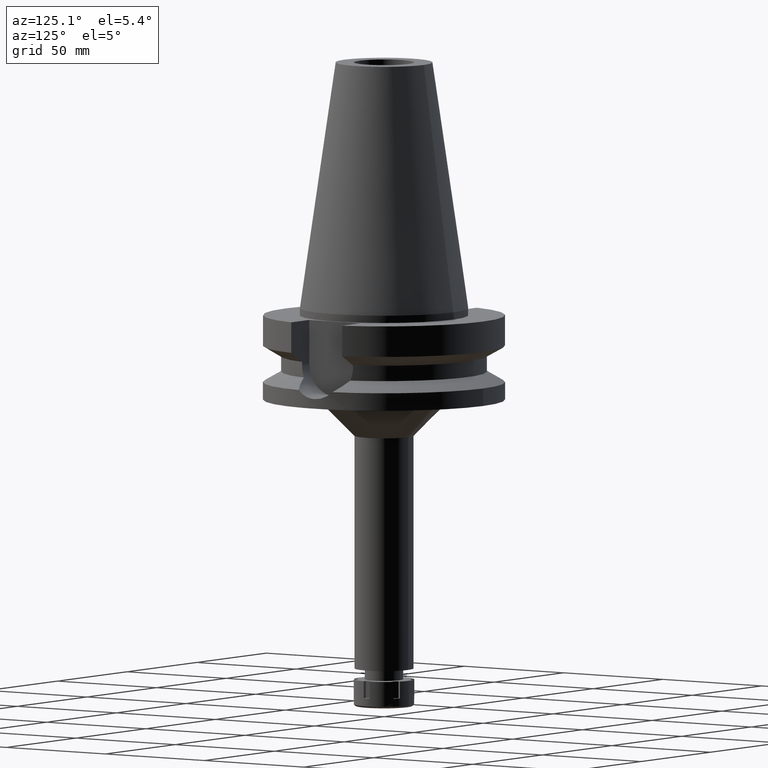
[diagram: clean part render]
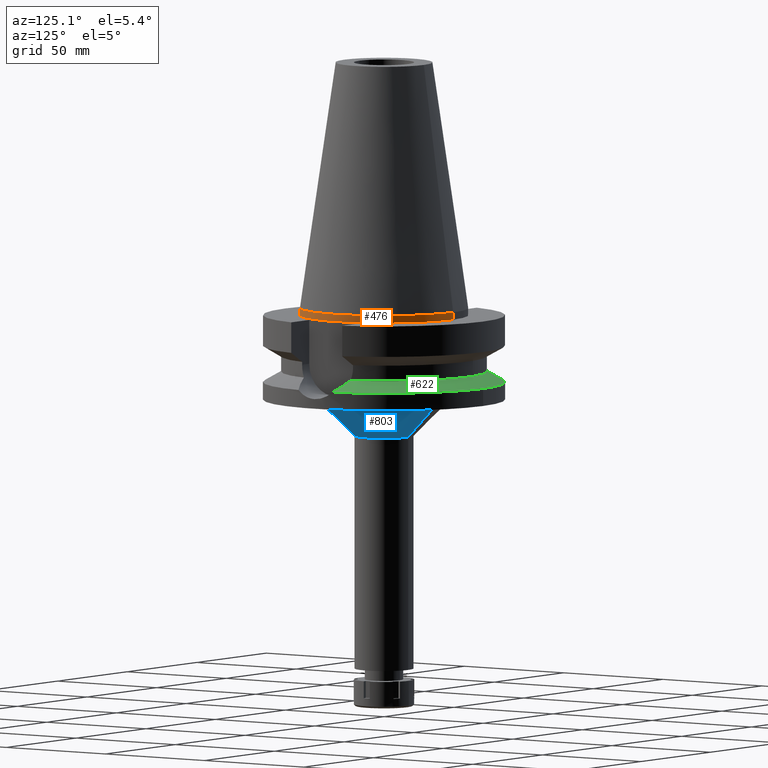
[diagram: same view with three faces highlighted in distinct colors, each labeled with its STEP entity id]
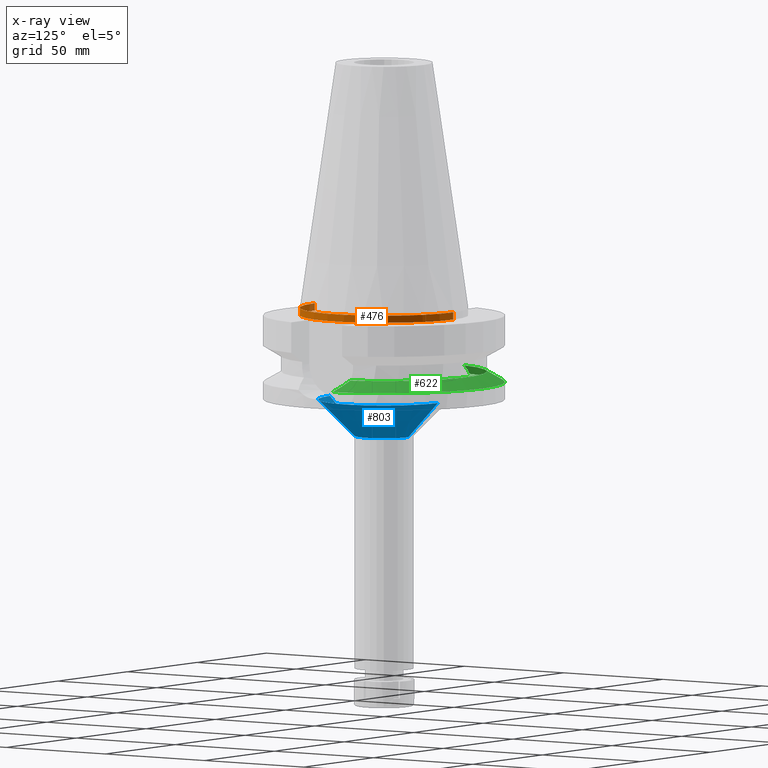
[diagram: x-ray of the same camera — body ghosted, the three highlighted faces saturated]
A machine part, auxiliary view with three faces highlighted in distinct colors.
The next image is the same camera in x-ray (body ghosted, the three faces saturated) — at least one of them is partly hidden behind the body in this view.
Their STEP definitions:

[orange] entity #476 — the highlighted cylindrical surface (partial cylindrical patch) has radius 34.925 mm, axis along (0, 0, -1).
#11 = ORIENTED_EDGE ( 'NONE', *, *, #611, .F. ) ;
#98 = AXIS2_PLACEMENT_3D ( 'NONE', #3000, #3361, #2491 ) ;
#172 = CARTESIAN_POINT ( 'NONE',  ( 0.0000000000000000000, -34.92499999999999716, 4.760636329592999411E-13 ) ) ;
#181 = CARTESIAN_POINT ( 'NONE',  ( 0.0000000000000000000, 34.92499999999999716, -3.000000000000000000 ) ) ;
#230 = AXIS2_PLACEMENT_3D ( 'NONE', #3483, #1244, #369 ) ;
#277 = CARTESIAN_POINT ( 'NONE',  ( 0.0000000000000000000, 34.92499999999999716, 4.760636329592999411E-13 ) ) ;
#326 = ORIENTED_EDGE ( 'NONE', *, *, #3617, .T. ) ;
#369 = DIRECTION ( 'NONE',  ( 0.0000000000000000000, -1.000000000000000000, 0.0000000000000000000 ) ) ;
#476 = ADVANCED_FACE ( 'NONE', ( #651 ), #926, .T. ) ;
#530 = AXIS2_PLACEMENT_3D ( 'NONE', #2131, #1307, #3579 ) ;
#588 = LINE ( 'NONE', #1442, #3248 ) ;
#611 = EDGE_CURVE ( 'NONE', #2737, #2070, #2663, .T. ) ;
#651 = FACE_OUTER_BOUND ( 'NONE', #2774, .T. ) ;
#760 = CIRCLE ( 'NONE', #530, 34.92499999999999716 ) ;
#761 = VERTEX_POINT ( 'NONE', #172 ) ;
#905 = CARTESIAN_POINT ( 'NONE',  ( 0.0000000000000000000, 34.92499999999999716, 4.760636329592999411E-13 ) ) ;
#926 = CYLINDRICAL_SURFACE ( 'NONE', #230, 34.92499999999999716 ) ;
#977 = EDGE_CURVE ( 'NONE', #1722, #2070, #760, .T. ) ;
#1244 = DIRECTION ( 'NONE',  ( 0.0000000000000000000, 0.0000000000000000000, -1.000000000000000000 ) ) ;
#1307 = DIRECTION ( 'NONE',  ( 0.0000000000000000000, 0.0000000000000000000, 1.000000000000000000 ) ) ;
#1442 = CARTESIAN_POINT ( 'NONE',  ( 0.0000000000000000000, -34.92499999999999716, 4.760636329592999411E-13 ) ) ;
#1698 = CARTESIAN_POINT ( 'NONE',  ( 0.0000000000000000000, -34.92499999999999716, -3.000000000000000000 ) ) ;
#1722 = VERTEX_POINT ( 'NONE', #1698 ) ;
#1870 = CIRCLE ( 'NONE', #98, 34.92499999999999716 ) ;
#1959 = ORIENTED_EDGE ( 'NONE', *, *, #3294, .T. ) ;
#2070 = VERTEX_POINT ( 'NONE', #181 ) ;
#2131 = CARTESIAN_POINT ( 'NONE',  ( 0.0000000000000000000, 2.631031183287999807E-14, -3.000000000000000000 ) ) ;
#2491 = DIRECTION ( 'NONE',  ( 0.0000000000000000000, 1.000000000000000000, 0.0000000000000000000 ) ) ;
#2579 = DIRECTION ( 'NONE',  ( 0.0000000000000000000, 2.107943449421000052E-13, -1.000000000000000000 ) ) ;
#2663 = LINE ( 'NONE', #905, #3379 ) ;
#2737 = VERTEX_POINT ( 'NONE', #277 ) ;
#2774 = EDGE_LOOP ( 'NONE', ( #326, #1959, #2812, #11 ) ) ;
#2812 = ORIENTED_EDGE ( 'NONE', *, *, #977, .T. ) ;
#3000 = CARTESIAN_POINT ( 'NONE',  ( 0.0000000000000000000, 1.847992019912999597E-14, 6.252776074689000785E-13 ) ) ;
#3248 = VECTOR ( 'NONE', #2579, 1000.000000000000000 ) ;
#3294 = EDGE_CURVE ( 'NONE', #761, #1722, #588, .T. ) ;
#3361 = DIRECTION ( 'NONE',  ( 0.0000000000000000000, 0.0000000000000000000, -1.000000000000000000 ) ) ;
#3379 = VECTOR ( 'NONE', #3509, 1000.000000000000000 ) ;
#3483 = CARTESIAN_POINT ( 'NONE',  ( 0.0000000000000000000, 2.631031183287999807E-14, 114.8400000000000034 ) ) ;
#3509 = DIRECTION ( 'NONE',  ( 0.0000000000000000000, -2.084258691563000093E-13, -1.000000000000000000 ) ) ;
#3579 = DIRECTION ( 'NONE',  ( 0.0000000000000000000, -1.000000000000000000, 0.0000000000000000000 ) ) ;
#3617 = EDGE_CURVE ( 'NONE', #2737, #761, #1870, .T. ) ;

[blue] entity #803 — the highlighted conical surface has half-angle 45 deg.
#22 = CARTESIAN_POINT ( 'NONE',  ( 0.0000000000000000000, 0.0000000000000000000, -38.00000000000000000 ) ) ;
#258 = DIRECTION ( 'NONE',  ( 0.0000000000000000000, -0.7071067811865474617, -0.7071067811865474617 ) ) ;
#271 = DIRECTION ( 'NONE',  ( 0.0000000000000000000, 1.000000000000000000, 0.0000000000000000000 ) ) ;
#323 = DIRECTION ( 'NONE',  ( 0.0000000000000000000, 1.000000000000000000, 0.0000000000000000000 ) ) ;
#663 = LINE ( 'NONE', #1789, #710 ) ;
#710 = VECTOR ( 'NONE', #1452, 1000.000000000000114 ) ;
#784 = ORIENTED_EDGE ( 'NONE', *, *, #2039, .T. ) ;
#802 = AXIS2_PLACEMENT_3D ( 'NONE', #1683, #2820, #271 ) ;
#803 = ADVANCED_FACE ( 'NONE', ( #3477 ), #3201, .T. ) ;
#889 = VECTOR ( 'NONE', #258, 1000.000000000000114 ) ;
#903 = DIRECTION ( 'NONE',  ( 0.0000000000000000000, 0.0000000000000000000, -1.000000000000000000 ) ) ;
#1120 = ORIENTED_EDGE ( 'NONE', *, *, #3206, .T. ) ;
#1160 = AXIS2_PLACEMENT_3D ( 'NONE', #22, #903, #323 ) ;
#1262 = CARTESIAN_POINT ( 'NONE',  ( 0.0000000000000000000, -12.25000000000000000, -53.00000000000000000 ) ) ;
#1377 = CARTESIAN_POINT ( 'NONE',  ( 0.0000000000000000000, -27.25000000000000000, -38.00000000000000000 ) ) ;
#1452 = DIRECTION ( 'NONE',  ( 0.0000000000000000000, 0.7071067811865474617, -0.7071067811865474617 ) ) ;
#1683 = CARTESIAN_POINT ( 'NONE',  ( 0.0000000000000000000, 0.0000000000000000000, -53.00000000000000000 ) ) ;
#1789 = CARTESIAN_POINT ( 'NONE',  ( 0.0000000000000000000, -27.25000000000000000, -38.00000000000000000 ) ) ;
#2039 = EDGE_CURVE ( 'NONE', #3591, #3580, #663, .T. ) ;
#2318 = VERTEX_POINT ( 'NONE', #2628 ) ;
#2527 = CIRCLE ( 'NONE', #1160, 27.25000000000000000 ) ;
#2530 = CARTESIAN_POINT ( 'NONE',  ( 0.0000000000000000000, 27.25000000000000000, -38.00000000000000000 ) ) ;
#2563 = EDGE_CURVE ( 'NONE', #2318, #2811, #3335, .T. ) ;
#2628 = CARTESIAN_POINT ( 'NONE',  ( 0.0000000000000000000, 27.25000000000000000, -38.00000000000000000 ) ) ;
#2790 = AXIS2_PLACEMENT_3D ( 'NONE', #3220, #3537, #2932 ) ;
#2811 = VERTEX_POINT ( 'NONE', #3160 ) ;
#2820 = DIRECTION ( 'NONE',  ( 0.0000000000000000000, 0.0000000000000000000, -1.000000000000000000 ) ) ;
#2833 = ORIENTED_EDGE ( 'NONE', *, *, #3694, .F. ) ;
#2932 = DIRECTION ( 'NONE',  ( 0.0000000000000000000, 1.000000000000000000, 0.0000000000000000000 ) ) ;
#2950 = CIRCLE ( 'NONE', #802, 12.25000000000000000 ) ;
#3160 = CARTESIAN_POINT ( 'NONE',  ( 0.0000000000000000000, 12.25000000000000000, -53.00000000000000000 ) ) ;
#3201 = CONICAL_SURFACE ( 'NONE', #2790, 19.75000000000000000, 0.7853981633972997312 ) ;
#3206 = EDGE_CURVE ( 'NONE', #2318, #3591, #2527, .T. ) ;
#3220 = CARTESIAN_POINT ( 'NONE',  ( 0.0000000000000000000, 0.0000000000000000000, -45.50000000000000000 ) ) ;
#3232 = EDGE_LOOP ( 'NONE', ( #1120, #784, #2833, #3553 ) ) ;
#3335 = LINE ( 'NONE', #2530, #889 ) ;
#3477 = FACE_OUTER_BOUND ( 'NONE', #3232, .T. ) ;
#3537 = DIRECTION ( 'NONE',  ( 0.0000000000000000000, 0.0000000000000000000, 1.000000000000000000 ) ) ;
#3553 = ORIENTED_EDGE ( 'NONE', *, *, #2563, .F. ) ;
#3580 = VERTEX_POINT ( 'NONE', #1262 ) ;
#3591 = VERTEX_POINT ( 'NONE', #1377 ) ;
#3694 = EDGE_CURVE ( 'NONE', #2811, #3580, #2950, .T. ) ;

[green] entity #622 — the highlighted conical surface has half-angle 60 deg.
#115 = CARTESIAN_POINT ( 'NONE',  ( 0.0000000000000000000, 0.0000000000000000000, -28.57224425480999841 ) ) ;
#147 = DIRECTION ( 'NONE',  ( 0.0000000000000000000, 0.0000000000000000000, -1.000000000000000000 ) ) ;
#205 = CARTESIAN_POINT ( 'NONE',  ( 46.11239033101448825, 10.07965761527558257, -29.12152633212459563 ) ) ;
#208 = CARTESIAN_POINT ( 'NONE',  ( -45.22919437284500788, 10.42209117739751356, -28.66716337317156160 ) ) ;
#218 = VERTEX_POINT ( 'NONE', #987 ) ;
#332 = VERTEX_POINT ( 'NONE', #2864 ) ;
#429 = FACE_OUTER_BOUND ( 'NONE', #1115, .T. ) ;
#472 = CIRCLE ( 'NONE', #1712, 42.50000000000000000 ) ;
#488 = CARTESIAN_POINT ( 'NONE',  ( -44.11098808435493623, 10.81602222748083086, -28.09167611786166674 ) ) ;
#604 = DIRECTION ( 'NONE',  ( 0.0000000000000000000, 1.000000000000000000, 0.0000000000000000000 ) ) ;
#622 = ADVANCED_FACE ( 'NONE', ( #429 ), #942, .T. ) ;
#725 = CARTESIAN_POINT ( 'NONE',  ( 45.58834750755497112, 10.28594755190970922, -28.85207664925529869 ) ) ;
#746 = ORIENTED_EDGE ( 'NONE', *, *, #3039, .F. ) ;
#809 = B_SPLINE_CURVE_WITH_KNOTS ( 'NONE', 3,
 ( #2173, #3037, #1670, #2810, #488, #1615, #2474, #208, #3623, #1064, #3422, #855, #2879, #2825 ),
 .UNSPECIFIED., .F., .F.,
 ( 4, 2, 2, 1, 1, 2, 2, 4 ),
 ( 0.0000000000000000000, 0.2499999999999942824, 0.3749999999999921729, 0.4374999999999912292, 0.4687499999999906741, 0.4843749999999894529, 0.4999999999999882871, 1.000000000000000000 ),
 .UNSPECIFIED. ) ;
#855 = CARTESIAN_POINT ( 'NONE',  ( -46.93591915832870853, 9.770484206693581086, -29.54493518995381507 ) ) ;
#942 = CONICAL_SURFACE ( 'NONE', #1772, 46.25000000000000000, 1.047197551196400456 ) ;
#947 = CARTESIAN_POINT ( 'NONE',  ( 46.86879356502294769, 9.761153168012040027, -29.51014874962805123 ) ) ;
#952 = EDGE_CURVE ( 'NONE', #332, #218, #472, .T. ) ;
#964 = VERTEX_POINT ( 'NONE', #2766 ) ;
#987 = CARTESIAN_POINT ( 'NONE',  ( -40.85052569294000335, 11.72538061688000077, -26.40718074535000426 ) ) ;
#1002 = CARTESIAN_POINT ( 'NONE',  ( 42.60291193670837373, 11.31842669567318715, -27.31483255547851741 ) ) ;
#1064 = CARTESIAN_POINT ( 'NONE',  ( -45.44309460276910784, 10.34163366852329347, -28.77717863752832983 ) ) ;
#1115 = EDGE_LOOP ( 'NONE', ( #2937, #3511, #3145, #746, #1260 ) ) ;
#1214 = EDGE_CURVE ( 'NONE', #964, #332, #1963, .T. ) ;
#1232 = AXIS2_PLACEMENT_3D ( 'NONE', #1668, #2298, #604 ) ;
#1260 = ORIENTED_EDGE ( 'NONE', *, *, #2682, .F. ) ;
#1393 = EDGE_CURVE ( 'NONE', #2876, #964, #3675, .T. ) ;
#1400 = CARTESIAN_POINT ( 'NONE',  ( -49.26250064874000145, 8.556052234130000045, -30.73730776426999967 ) ) ;
#1564 = CARTESIAN_POINT ( 'NONE',  ( 45.65460203010486140, 10.26040408791286396, -28.88615002080562277 ) ) ;
#1615 = CARTESIAN_POINT ( 'NONE',  ( -44.65684567488739987, 10.62863509843364440, -28.37269284837776695 ) ) ;
#1668 = CARTESIAN_POINT ( 'NONE',  ( 0.0000000000000000000, 0.0000000000000000000, -30.73730776426999967 ) ) ;
#1670 = CARTESIAN_POINT ( 'NONE',  ( -42.56482882960072089, 11.29548699843806325, -27.29433501536597007 ) ) ;
#1712 = AXIS2_PLACEMENT_3D ( 'NONE', #1914, #3293, #2505 ) ;
#1772 = AXIS2_PLACEMENT_3D ( 'NONE', #115, #147, #2112 ) ;
#1905 = CARTESIAN_POINT ( 'NONE',  ( 46.36713409503182248, 9.974239079559035659, -29.25243663073782230 ) ) ;
#1914 = CARTESIAN_POINT ( 'NONE',  ( 0.0000000000000000000, 0.0000000000000000000, -26.40718074535000426 ) ) ;
#1963 = B_SPLINE_CURVE_WITH_KNOTS ( 'NONE', 3,
 ( #3173, #3157, #3402, #3282, #947, #1905, #205, #2997, #1564, #725, #2667, #2380, #2963, #1002, #2433 ),
 .UNSPECIFIED., .F., .F.,
 ( 4, 2, 2, 1, 1, 1, 2, 2, 4 ),
 ( 0.0000000000000000000, 0.2499999999999790168, 0.3749999999999684142, 0.4374999999999637512, 0.4687499999999616418, 0.4843749999999606426, 0.4921874999999608091, 0.4999999999999610312, 1.000000000000000000 ),
 .UNSPECIFIED. ) ;
#2076 = DIRECTION ( 'NONE',  ( 0.0000000000000000000, 0.0000000000000000000, -1.000000000000000000 ) ) ;
#2112 = DIRECTION ( 'NONE',  ( 0.0000000000000000000, -1.000000000000000000, 0.0000000000000000000 ) ) ;
#2173 = CARTESIAN_POINT ( 'NONE',  ( -40.85052569294000335, 11.72538061688000077, -26.40718074535000426 ) ) ;
#2298 = DIRECTION ( 'NONE',  ( 0.0000000000000000000, 0.0000000000000000000, -1.000000000000000000 ) ) ;
#2380 = CARTESIAN_POINT ( 'NONE',  ( 45.52077084711825705, 10.31187943227462611, -28.81732184510347494 ) ) ;
#2433 = CARTESIAN_POINT ( 'NONE',  ( 40.85052569294000335, 11.72538061688000077, -26.40718074535000426 ) ) ;
#2474 = CARTESIAN_POINT ( 'NONE',  ( -44.92492416586787130, 10.53397732397731268, -28.51064663896384133 ) ) ;
#2505 = DIRECTION ( 'NONE',  ( 0.0000000000000000000, 1.000000000000000000, 0.0000000000000000000 ) ) ;
#2667 = CARTESIAN_POINT ( 'NONE',  ( 45.54409628358376239, 10.30294959596579929, -28.82931841862473021 ) ) ;
#2682 = EDGE_CURVE ( 'NONE', #218, #3349, #809, .T. ) ;
#2718 = AXIS2_PLACEMENT_3D ( 'NONE', #3510, #2076, #3224 ) ;
#2766 = CARTESIAN_POINT ( 'NONE',  ( 49.26250064874000145, 8.556052234130000045, -30.73730776426999967 ) ) ;
#2810 = CARTESIAN_POINT ( 'NONE',  ( -43.73414887923789962, 10.93837857007995140, -27.89751577144135553 ) ) ;
#2825 = CARTESIAN_POINT ( 'NONE',  ( -49.26250064874000145, 8.556052234130000045, -30.73730776426999967 ) ) ;
#2864 = CARTESIAN_POINT ( 'NONE',  ( 40.85052569294000335, 11.72538061688000077, -26.40718074535000426 ) ) ;
#2876 = VERTEX_POINT ( 'NONE', #3241 ) ;
#2879 = CARTESIAN_POINT ( 'NONE',  ( -48.18081741074581004, 9.176793412118268378, -30.18333640199324464 ) ) ;
#2881 = CIRCLE ( 'NONE', #2718, 50.00000000000000000 ) ;
#2937 = ORIENTED_EDGE ( 'NONE', *, *, #952, .F. ) ;
#2963 = CARTESIAN_POINT ( 'NONE',  ( 44.15264428779690320, 10.83393935848216572, -28.11365637162113273 ) ) ;
#2997 = CARTESIAN_POINT ( 'NONE',  ( 45.80833972220609951, 10.20052237594216926, -28.96520655390914101 ) ) ;
#3037 = CARTESIAN_POINT ( 'NONE',  ( -41.73354555079443173, 11.52031829404238117, -26.86454257137959090 ) ) ;
#3039 = EDGE_CURVE ( 'NONE', #3349, #2876, #2881, .T. ) ;
#3145 = ORIENTED_EDGE ( 'NONE', *, *, #1393, .F. ) ;
#3157 = CARTESIAN_POINT ( 'NONE',  ( 48.71887028411581610, 8.868023189283180230, -30.45889385981954334 ) ) ;
#3173 = CARTESIAN_POINT ( 'NONE',  ( 49.26250064874000145, 8.556052234130000045, -30.73730776426999967 ) ) ;
#3224 = DIRECTION ( 'NONE',  ( -0.9852500129747439050, 0.1711210446826074982, 0.0000000000000000000 ) ) ;
#3241 = CARTESIAN_POINT ( 'NONE',  ( 0.0000000000000000000, 50.00000000000000000, -30.73730776426999967 ) ) ;
#3282 = CARTESIAN_POINT ( 'NONE',  ( 47.19279580095893323, 9.616098603351192153, -29.67647683142283199 ) ) ;
#3293 = DIRECTION ( 'NONE',  ( 0.0000000000000000000, 0.0000000000000000000, 1.000000000000000000 ) ) ;
#3349 = VERTEX_POINT ( 'NONE', #1400 ) ;
#3402 = CARTESIAN_POINT ( 'NONE',  ( 48.13349027659253210, 9.173327110561801945, -30.15906253431977291 ) ) ;
#3422 = CARTESIAN_POINT ( 'NONE',  ( -45.48380235189999610, 10.32616262373835347, -28.79811487686651716 ) ) ;
#3510 = CARTESIAN_POINT ( 'NONE',  ( 0.0000000000000000000, 0.0000000000000000000, -30.73730776426999967 ) ) ;
#3511 = ORIENTED_EDGE ( 'NONE', *, *, #1214, .F. ) ;
#3623 = CARTESIAN_POINT ( 'NONE',  ( -45.35777702601375694, 10.37385327903814769, -28.73329803236643798 ) ) ;
#3675 = CIRCLE ( 'NONE', #1232, 50.00000000000000000 ) ;